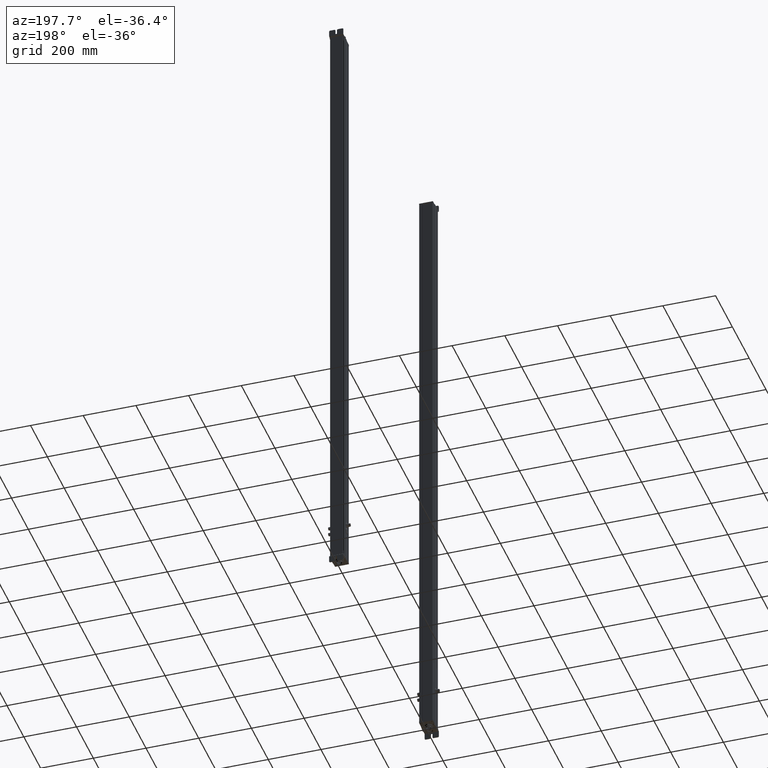
[diagram: clean part render]
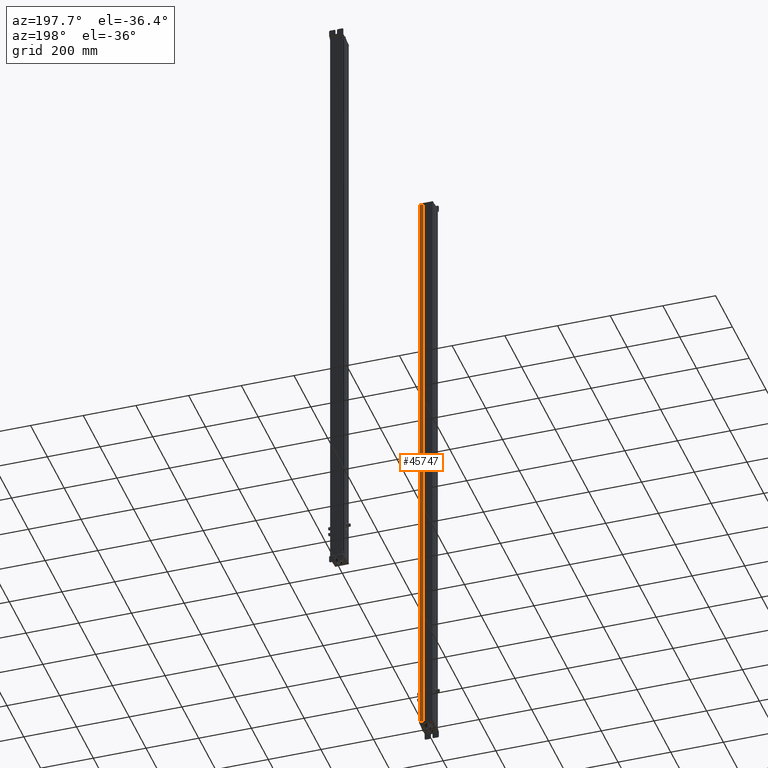
[diagram: same view with one face highlighted and labeled with its STEP entity id]
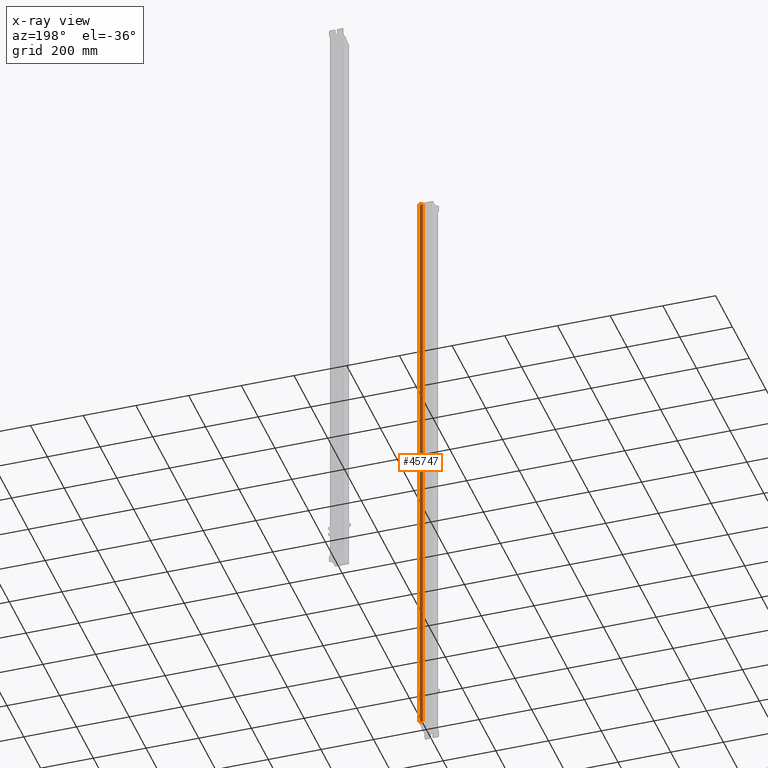
[diagram: x-ray of the same camera — body ghosted, the highlighted face saturated]
A machine part, auxiliary view. The second image highlights one B-rep face of the part: STEP entity #45747.
The next image is the same camera in x-ray: the body ghosted, the highlighted face saturated — about 0% of this face is hidden behind the body in this view.
In plain terms, the highlighted planar face has unit normal (0, 1, 0).
Its self-contained STEP definition (entity closure, byte-faithful):
#41848=CARTESIAN_POINT('Axis2P3D Location',(664.195883662,182.060203323,0.)) ;
#45700=CARTESIAN_POINT('Vertex',(664.195883661,182.060203323,0.)) ;
#45703=CARTESIAN_POINT('Line Origine',(664.195883661,182.060203323,1161.)) ;
#45707=CARTESIAN_POINT('Vertex',(664.195883661,182.060203323,2322.)) ;
#45722=CARTESIAN_POINT('Line Origine',(657.845883661,182.060203323,0.)) ;
#45726=CARTESIAN_POINT('Vertex',(651.495883661,182.060203323,0.)) ;
#45729=CARTESIAN_POINT('Line Origine',(651.495883661,182.060203323,1161.)) ;
#45733=CARTESIAN_POINT('Vertex',(651.495883661,182.060203323,2322.)) ;
#45736=CARTESIAN_POINT('Line Origine',(657.845883661,182.060203323,2322.)) ;
#41849=DIRECTION('Axis2P3D Direction',(0.,1.,-0.)) ;
#41850=DIRECTION('Axis2P3D XDirection',(-1.,0.,0.)) ;
#45704=DIRECTION('Vector Direction',(0.,0.,1.)) ;
#45723=DIRECTION('Vector Direction',(-1.,0.,0.)) ;
#45730=DIRECTION('Vector Direction',(0.,0.,1.)) ;
#45737=DIRECTION('Vector Direction',(-1.,0.,0.)) ;
#41851=AXIS2_PLACEMENT_3D('Plane Axis2P3D',#41848,#41849,#41850) ;
#45742=ORIENTED_EDGE('',*,*,#45709,.F.) ;
#45743=ORIENTED_EDGE('',*,*,#45728,.T.) ;
#45744=ORIENTED_EDGE('',*,*,#45735,.T.) ;
#45745=ORIENTED_EDGE('',*,*,#45740,.F.) ;
#45705=VECTOR('Line Direction',#45704,1.) ;
#45724=VECTOR('Line Direction',#45723,1.) ;
#45731=VECTOR('Line Direction',#45730,1.) ;
#45738=VECTOR('Line Direction',#45737,1.) ;
#45747=ADVANCED_FACE('Body.2',(#45746),#41852,.T.) ;
#45709=EDGE_CURVE('',#45701,#45708,#45706,.T.) ;
#45728=EDGE_CURVE('',#45701,#45727,#45725,.T.) ;
#45735=EDGE_CURVE('',#45727,#45734,#45732,.T.) ;
#45740=EDGE_CURVE('',#45708,#45734,#45739,.T.) ;
#45741=EDGE_LOOP('',(#45742,#45743,#45744,#45745)) ;
#45746=FACE_OUTER_BOUND('',#45741,.T.) ;
#45706=LINE('Line',#45703,#45705) ;
#45725=LINE('Line',#45722,#45724) ;
#45732=LINE('Line',#45729,#45731) ;
#45739=LINE('Line',#45736,#45738) ;
#41852=PLANE('Plane',#41851) ;
#45701=VERTEX_POINT('',#45700) ;
#45708=VERTEX_POINT('',#45707) ;
#45727=VERTEX_POINT('',#45726) ;
#45734=VERTEX_POINT('',#45733) ;